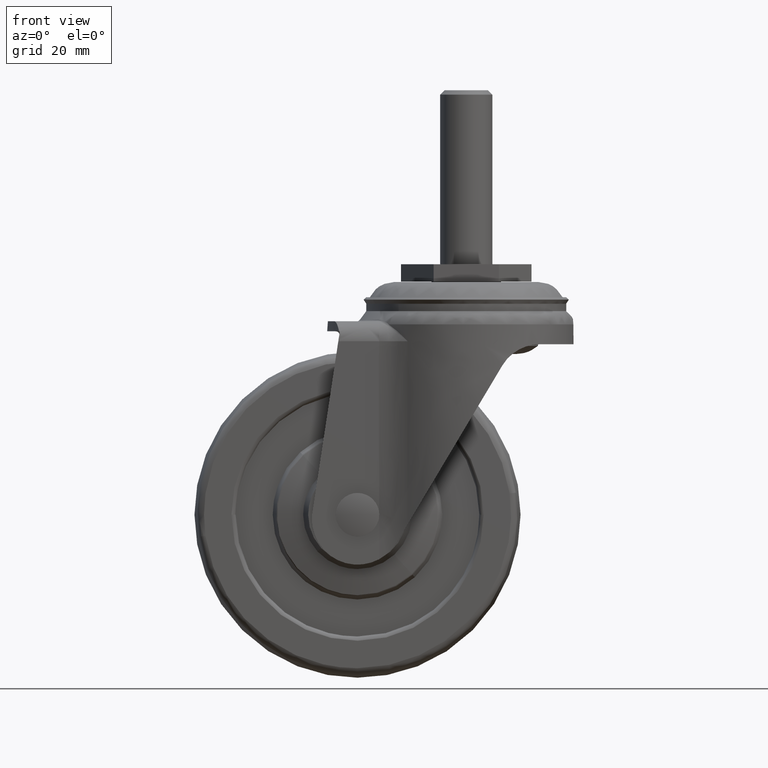
[diagram: clean part render]
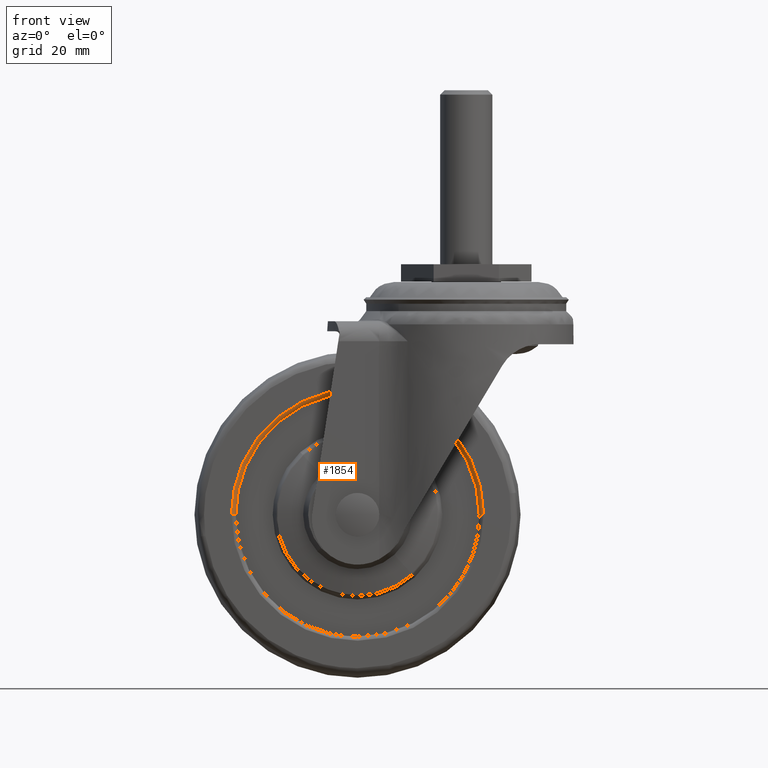
[diagram: same view with one face highlighted and labeled with its STEP entity id]
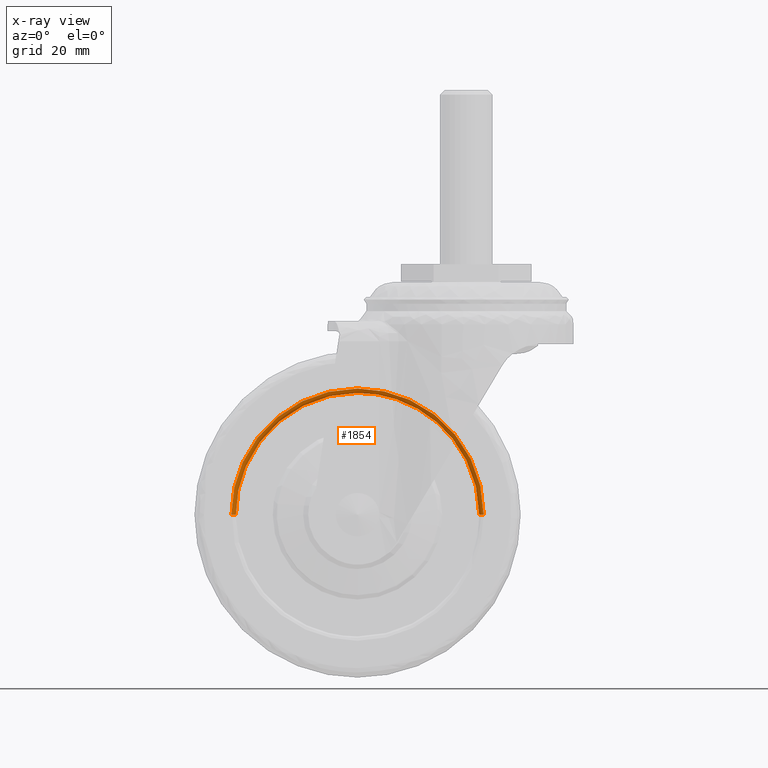
[diagram: x-ray of the same camera — body ghosted, the highlighted face saturated]
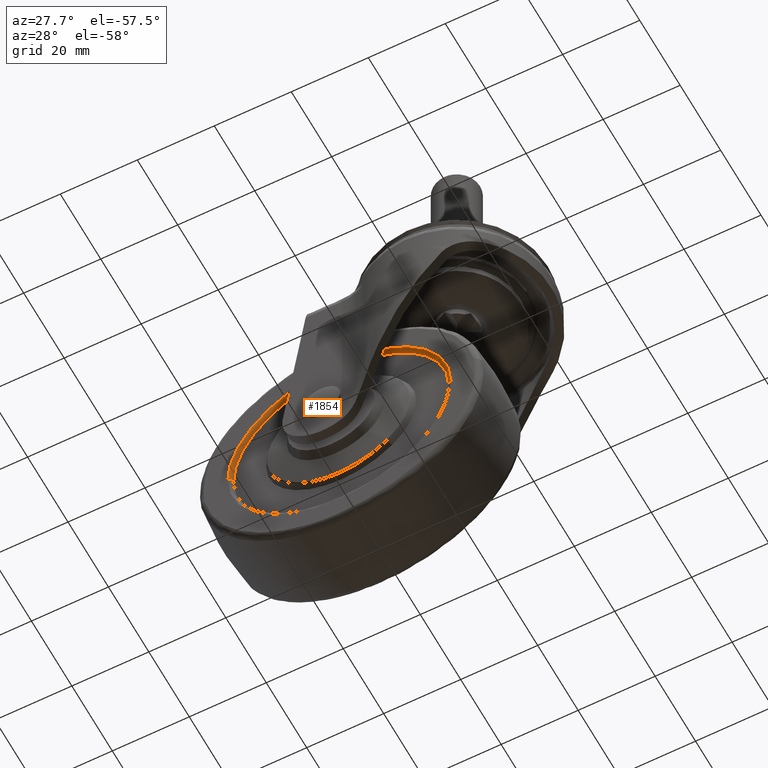
[diagram: same view with one face highlighted and labeled with its STEP entity id]
A machine part, front view. The second image highlights one B-rep face of the part: STEP entity #1854.
The next image is the same camera in x-ray: the body ghosted, the highlighted face saturated — about 0% of this face is hidden behind the body in this view.
A second angle (auxiliary view) of the same face is appended — the face is thin or edge-on in the first view.
In plain terms, the highlighted face is a freeform B-spline surface patch.
Its self-contained STEP definition (entity closure, byte-faithful):
#1453=CARTESIAN_POINT('',(3.000000000000004,-9.499999282886275,-49.499964278717137));
#1454=VERTEX_POINT('',#1453);
#1472=CARTESIAN_POINT('',(-25.0,-9.499999282737401,-21.499964278717140));
#1473=VERTEX_POINT('',#1472);
#1474=CARTESIAN_POINT('',(3.000000000000004,-9.499999282886275,-49.499964278717137));
#1475=CARTESIAN_POINT('',(3.000363018657835,-9.499999282880800,-47.438258208211941));
#1476=CARTESIAN_POINT('',(2.637728984412518,-9.499999282871174,-44.174167330163797));
#1477=CARTESIAN_POINT('',(1.232490970023057,-9.499999282854610,-39.383212602821132));
#1478=CARTESIAN_POINT('',(-0.414984164900105,-9.499999282841188,-35.899911908488392));
#1479=CARTESIAN_POINT('',(-2.561320840873848,-9.499999282826595,-32.644851780273797));
#1480=CARTESIAN_POINT('',(-4.556898674691161,-9.499999282815082,-30.273185028284960));
#1481=CARTESIAN_POINT('',(-7.021228447789879,-9.499999282802378,-27.955605006370391));
#1482=CARTESIAN_POINT('',(-9.458643020196417,-9.499999282791050,-26.136292856127248));
#1483=CARTESIAN_POINT('',(-12.529995024095991,-9.499999282778056,-24.346192789496278));
#1484=CARTESIAN_POINT('',(-15.701634461664080,-9.499999282766126,-22.998145959190602));
#1485=CARTESIAN_POINT('',(-20.017756542385200,-9.499999282751801,-21.817910523075629));
#1486=CARTESIAN_POINT('',(-23.052844803825629,-9.499999282742074,-21.499671707951912));
#1487=CARTESIAN_POINT('',(-25.0,-9.499999282737401,-21.499964278717140));
#1488=B_SPLINE_CURVE_WITH_KNOTS('',3,(#1474,#1475,#1476,#1477,#1478,#1479,#1480,#1481,#1482,#1483,#1484,#1485,#1486,#1487),.UNSPECIFIED.,.F.,.U.,(4,1,1,1,1,1,1,1,1,1,1,4),(0.000000073621635,6.184998385813692,9.792942893001914,14.947145035379791,17.696058806659821,21.475783057035549,24.224662258280151,27.832567957770380,30.581484348270990,34.876646012188630,38.140981293886462,43.982366145716583),.UNSPECIFIED.);
#1489=EDGE_CURVE('',#1454,#1473,#1488,.T.);
#1491=CARTESIAN_POINT('',(-53.000000000000007,-9.499999282886275,-49.499964278717137));
#1492=VERTEX_POINT('',#1491);
#1493=CARTESIAN_POINT('',(-25.0,-9.499999282737401,-21.499964278717140));
#1494=CARTESIAN_POINT('',(-27.118973088559109,-9.499999282743012,-21.499599913976180));
#1495=CARTESIAN_POINT('',(-30.383096429472591,-9.499999282752762,-21.872271500663370));
#1496=CARTESIAN_POINT('',(-34.343560821056393,-9.499999282766256,-23.047471409846779));
#1497=CARTESIAN_POINT('',(-37.676179584015983,-9.499999282778973,-24.439737091316729));
#1498=CARTESIAN_POINT('',(-41.152520706985612,-9.499999282793505,-26.465730619512541));
#1499=CARTESIAN_POINT('',(-44.987853870409118,-9.499999282812384,-29.672800824026460));
#1500=CARTESIAN_POINT('',(-47.930154315883023,-9.499999282829128,-33.213385419462682));
#1501=CARTESIAN_POINT('',(-49.963341830259317,-9.499999282844730,-36.678011581715730));
#1502=CARTESIAN_POINT('',(-51.348070600258062,-9.499999282856166,-39.827873470902887));
#1503=CARTESIAN_POINT('',(-52.614517431724373,-9.499999282870611,-44.002351308129079));
#1504=CARTESIAN_POINT('',(-53.000455786452747,-9.499999282880699,-47.380987778936102));
#1505=CARTESIAN_POINT('',(-53.000000000000007,-9.499999282886275,-49.499964278717137));
#1506=B_SPLINE_CURVE_WITH_KNOTS('',3,(#1493,#1494,#1495,#1496,#1497,#1498,#1499,#1500,#1501,#1502,#1503,#1504,#1505),.UNSPECIFIED.,.F.,.U.,(4,1,1,1,1,1,1,1,1,1,4),(0.000000073592446,6.356824359234864,9.792942892983326,12.370047112887249,17.180640658267979,21.819421284376642,27.317148873169518,30.925090465776730,33.845807358312364,37.625561627439019,43.982366145716718),.UNSPECIFIED.);
#1507=EDGE_CURVE('',#1473,#1492,#1506,.T.);
#1761=CARTESIAN_POINT('',(4.069351398793100,-10.497592344810773,-50.312648510645673));
#1762=CARTESIAN_POINT('',(4.069351398793101,-10.497592344810773,-49.908672829433257));
#1763=CARTESIAN_POINT('',(4.069351398793108,-10.497592344810775,-20.430612879924048));
#1764=CARTESIAN_POINT('',(-24.999999999999993,-10.497592344810773,-20.430612879924038));
#1765=CARTESIAN_POINT('',(-54.069351398793081,-10.497592344810775,-20.430612879924034));
#1766=CARTESIAN_POINT('',(-54.069351398793103,-10.497592344810773,-49.908672829433236));
#1767=CARTESIAN_POINT('',(-54.069351398793103,-10.497592344810773,-50.312648510645658));
#1768=CARTESIAN_POINT('',(2.922260654712776,-10.577335807254238,-50.280579595604650));
#1769=CARTESIAN_POINT('',(2.922260654712775,-10.577335807254238,-49.892544991246524));
#1770=CARTESIAN_POINT('',(2.922260654712780,-10.577335807254238,-21.577703624004368));
#1771=CARTESIAN_POINT('',(-24.999999999999989,-10.577335807254238,-21.577703624004371));
#1772=CARTESIAN_POINT('',(-52.922260654712765,-10.577335807254238,-21.577703624004354));
#1773=CARTESIAN_POINT('',(-52.922260654712773,-10.577335807254238,-49.892544991246517));
#1774=CARTESIAN_POINT('',(-52.922260654712787,-10.577335807254240,-50.280579595604657));
#1775=CARTESIAN_POINT('',(3.002433696971126,-9.430275007535121,-50.282820972317026));
#1776=CARTESIAN_POINT('',(3.002433696971127,-9.430275007535119,-49.893672206211143));
#1777=CARTESIAN_POINT('',(3.002433696971133,-9.430275007535119,-21.497530581746016));
#1778=CARTESIAN_POINT('',(-24.999999999999996,-9.430275007535119,-21.497530581746002));
#1779=CARTESIAN_POINT('',(-53.002433696971110,-9.430275007535119,-21.497530581745998));
#1780=CARTESIAN_POINT('',(-53.002433696971131,-9.430275007535119,-49.893672206211114));
#1781=CARTESIAN_POINT('',(-53.002433696971131,-9.430275007535119,-50.282820972317026));
#1789=(BOUNDED_SURFACE()B_SPLINE_SURFACE(2,2,((#1761,#1768,#1775),(#1762,#1769,#1776),(#1763,#1770,#1777),(#1764,#1771,#1778),(#1765,#1772,#1779),(#1766,#1773,#1780),(#1767,#1774,#1781)),.UNSPECIFIED.,.F.,.F.,.U.)B_SPLINE_SURFACE_WITH_KNOTS((3,1,2,1,3),(3,3),(0.0,0.963273567901553,49.126951962979170,97.290630358056788,98.253903925958369),(0.0,1.822728566144322),.UNSPECIFIED.)GEOMETRIC_REPRESENTATION_ITEM()RATIONAL_B_SPLINE_SURFACE(((0.920730318469245,0.602530283667150,0.915630244211508),(0.915399262344060,0.599041615275418,0.910328717669053),(0.643515399959645,0.421119527297086,0.639950864003831),(0.910068206218876,0.595552946883686,0.905027191126598),(0.643515399959645,0.421119527297086,0.639950864003831),(0.915399262344061,0.599041615275418,0.910328717669053),(0.920730318469245,0.602530283667150,0.915630244211509)))REPRESENTATION_ITEM('')SURFACE());
#1790=ORIENTED_EDGE('',*,*,#1489,.F.);
#1791=CARTESIAN_POINT('',(4.000000713377556,-10.499999999999989,-49.499964278717137));
#1792=VERTEX_POINT('',#1791);
#1793=CARTESIAN_POINT('',(4.000000713377556,-10.499999999999989,-49.499964278717137));
#1794=CARTESIAN_POINT('',(3.844502635130130,-10.500278452498160,-49.499964278717187));
#1795=CARTESIAN_POINT('',(3.591145533952473,-10.439614207336289,-49.499964278717101));
#1796=CARTESIAN_POINT('',(3.273290032983603,-10.215775163605800,-49.499964278716860));
#1797=CARTESIAN_POINT('',(3.057219369152683,-9.908953394142653,-49.499964278717947));
#1798=CARTESIAN_POINT('',(2.999830305222295,-9.639104594740390,-49.499964278716853));
#1799=CARTESIAN_POINT('',(3.000000000000004,-9.499999282886275,-49.499964278717137));
#1800=B_SPLINE_CURVE_WITH_KNOTS('',3,(#1793,#1794,#1795,#1796,#1797,#1798,#1799),.UNSPECIFIED.,.F.,.U.,(4,1,1,1,4),(0.000000316525611,0.466344930970265,0.760921407329848,1.153582843651243,1.570836868836190),.UNSPECIFIED.);
#1801=EDGE_CURVE('',#1792,#1454,#1800,.T.);
#1802=ORIENTED_EDGE('',*,*,#1801,.F.);
#1803=CARTESIAN_POINT('',(-25.0,-10.500000000000000,-20.499963561454539));
#1804=VERTEX_POINT('',#1803);
#1805=CARTESIAN_POINT('',(4.000000713377556,-10.499999999999989,-49.499964278717137));
#1806=CARTESIAN_POINT('',(4.000122575816688,-10.499999999999980,-47.779859143149942));
#1807=CARTESIAN_POINT('',(3.682546375213615,-10.500000000000030,-44.221038101301950));
#1808=CARTESIAN_POINT('',(2.413220195890133,-10.500000000000011,-39.688423568357877));
#1809=CARTESIAN_POINT('',(0.471605914902487,-10.499999999999959,-35.415015379404032));
#1810=CARTESIAN_POINT('',(-2.016900409714758,-10.500000000000030,-31.563800814225129));
#1811=CARTESIAN_POINT('',(-5.188722026671706,-10.499999999999959,-28.170568058495011));
#1812=CARTESIAN_POINT('',(-8.685454093955791,-10.500000000000171,-25.407028740278399));
#1813=CARTESIAN_POINT('',(-12.129842187492400,-10.499999999999931,-23.399552687195548));
#1814=CARTESIAN_POINT('',(-15.988270455039570,-10.499999999999920,-21.842841602668791));
#1815=CARTESIAN_POINT('',(-20.195634915587480,-10.499999999999909,-20.775210338627240));
#1816=CARTESIAN_POINT('',(-23.279895883096490,-10.500000000000121,-20.499793487946590));
#1817=CARTESIAN_POINT('',(-25.0,-10.500000000000000,-20.499963561454539));
#1818=B_SPLINE_CURVE_WITH_KNOTS('',3,(#1805,#1806,#1807,#1808,#1809,#1810,#1811,#1812,#1813,#1814,#1815,#1816,#1817),.UNSPECIFIED.,.F.,.U.,(4,1,1,1,1,1,1,1,1,1,4),(0.000000069329140,5.160317266621874,10.676522062778870,14.057428217680140,19.217744132680611,24.378021124687400,27.936887041521640,32.563396588356497,36.300190577170000,40.392877371348092,45.553166059654181),.UNSPECIFIED.);
#1819=EDGE_CURVE('',#1792,#1804,#1818,.T.);
#1820=ORIENTED_EDGE('',*,*,#1819,.T.);
#1821=CARTESIAN_POINT('',(-54.000000713377560,-10.499999999999989,-49.499964278717137));
#1822=VERTEX_POINT('',#1821);
#1823=CARTESIAN_POINT('',(-25.0,-10.500000000000000,-20.499963561454539));
#1824=CARTESIAN_POINT('',(-26.838741708434458,-10.499999999999989,-20.499732709001190));
#1825=CARTESIAN_POINT('',(-29.804338223798911,-10.499999999999980,-20.783032108930460));
#1826=CARTESIAN_POINT('',(-34.353959950434039,-10.500000000000030,-21.937439841967802));
#1827=CARTESIAN_POINT('',(-38.035353032895330,-10.499999999999959,-23.475488846065542));
#1828=CARTESIAN_POINT('',(-41.341690155071817,-10.500000000000020,-25.471278485916059));
#1829=CARTESIAN_POINT('',(-43.982545486095262,-10.500000000000030,-27.493344678264432));
#1830=CARTESIAN_POINT('',(-46.250229143136302,-10.500000000000060,-29.679046376932291));
#1831=CARTESIAN_POINT('',(-48.413642951612331,-10.499999999999989,-32.282430917713981));
#1832=CARTESIAN_POINT('',(-50.172162167407912,-10.499999999999989,-34.967416483561117));
#1833=CARTESIAN_POINT('',(-51.923988653973709,-10.499999999999980,-38.474275639279170));
#1834=CARTESIAN_POINT('',(-53.521888924332409,-10.500000000000171,-43.212897538268031));
#1835=CARTESIAN_POINT('',(-54.000545907767503,-10.499999999999581,-47.186684266952817));
#1836=CARTESIAN_POINT('',(-54.000000713377560,-10.499999999999989,-49.499964278717137));
#1837=B_SPLINE_CURVE_WITH_KNOTS('',3,(#1823,#1824,#1825,#1826,#1827,#1828,#1829,#1830,#1831,#1832,#1833,#1834,#1835,#1836),.UNSPECIFIED.,.F.,.U.,(4,1,1,1,1,1,1,1,1,1,1,4),(0.000000069334810,5.516177115340007,8.897091725760085,14.057428217666990,17.438333887554961,20.463357009887240,24.022163261670649,26.869247039212230,30.606016916678669,33.631048026575300,38.613448427394196,45.553166059644383),.UNSPECIFIED.);
#1838=EDGE_CURVE('',#1804,#1822,#1837,.T.);
#1839=ORIENTED_EDGE('',*,*,#1838,.T.);
#1840=CARTESIAN_POINT('',(-54.000000713377560,-10.499999999999989,-49.499964278717137));
#1841=CARTESIAN_POINT('',(-53.893645257680681,-10.500048958800940,-49.499964278717272));
#1842=CARTESIAN_POINT('',(-53.664565615395503,-10.463154325205069,-49.499964278717009));
#1843=CARTESIAN_POINT('',(-53.373004759177249,-10.302714417081701,-49.499964278717059));
#1844=CARTESIAN_POINT('',(-53.150834687467018,-10.057541808468660,-49.499964278717258));
#1845=CARTESIAN_POINT('',(-53.026664253516202,-9.786340008103453,-49.499964278717037));
#1846=CARTESIAN_POINT('',(-52.999973420905192,-9.589992324764994,-49.499964278717187));
#1847=CARTESIAN_POINT('',(-53.000000000000007,-9.499999282886275,-49.499964278717137));
#1848=B_SPLINE_CURVE_WITH_KNOTS('',3,(#1840,#1841,#1842,#1843,#1844,#1845,#1846,#1847),.UNSPECIFIED.,.F.,.U.,(4,1,1,1,1,4),(0.000000316523683,0.319071998127657,0.687262680227070,0.981751711406399,1.300857605390064,1.570836868836175),.UNSPECIFIED.);
#1849=EDGE_CURVE('',#1822,#1492,#1848,.T.);
#1850=ORIENTED_EDGE('',*,*,#1849,.T.);
#1851=ORIENTED_EDGE('',*,*,#1507,.F.);
#1852=EDGE_LOOP('',(#1790,#1802,#1820,#1839,#1850,#1851));
#1853=FACE_OUTER_BOUND('',#1852,.T.);
#1854=ADVANCED_FACE('',(#1853),#1789,.T.);